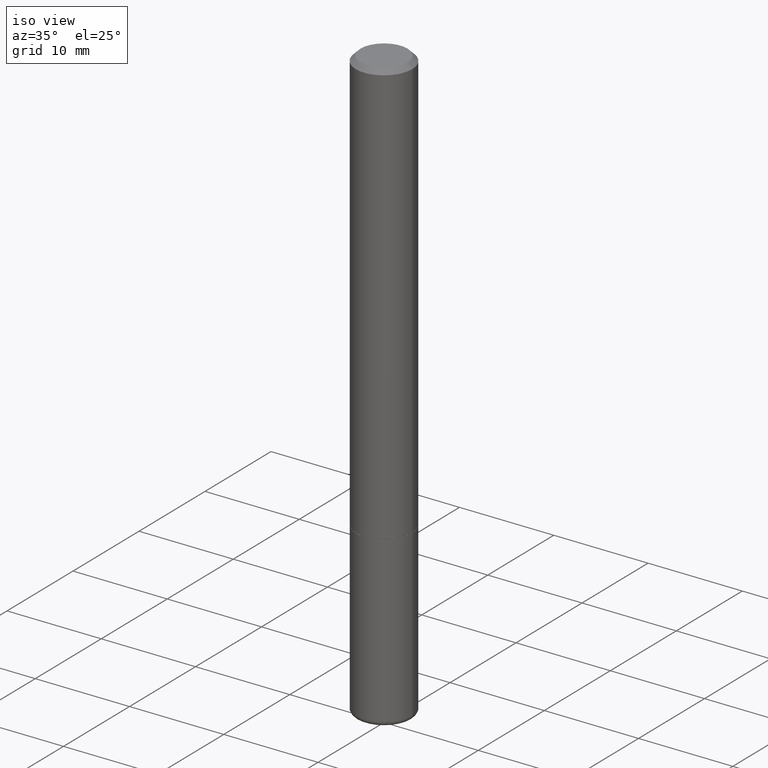
[diagram: clean part render]
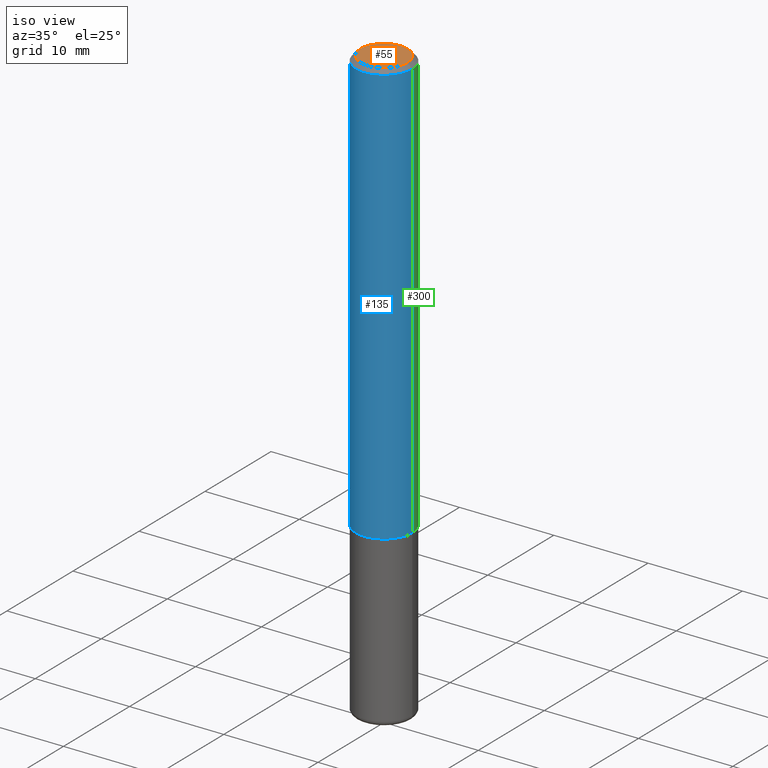
[diagram: same view with three faces highlighted in distinct colors, each labeled with its STEP entity id]
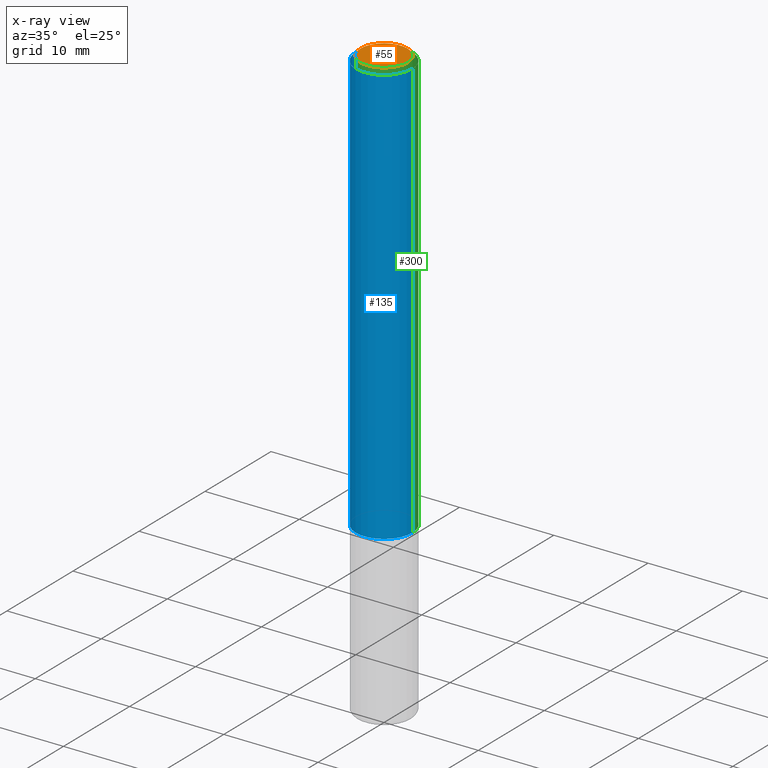
[diagram: x-ray of the same camera — body ghosted, the three highlighted faces saturated]
A machine part, iso view with three faces highlighted in distinct colors.
The next image is the same camera in x-ray (body ghosted, the three faces saturated) — at least one of them is partly hidden behind the body in this view.
Their STEP definitions:

[orange] entity #55 — the highlighted planar face has unit normal (0, -0, -1).
#55 = ADVANCED_FACE ( 'NONE', ( #97 ), #319, .F. ) ;
#62 = DIRECTION ( 'NONE',  ( 1.000000000000000000, -6.982962677686265922E-15, 4.884890577880254879E-29 ) ) ;
#77 = VERTEX_POINT ( 'NONE', #345 ) ;
#97 = FACE_OUTER_BOUND ( 'NONE', #197, .T. ) ;
#114 = ORIENTED_EDGE ( 'NONE', *, *, #281, .T. ) ;
#120 = DIRECTION ( 'NONE',  ( 2.438088387897960049E-29, -3.491481338843145188E-15, -1.000000000000000000 ) ) ;
#124 = AXIS2_PLACEMENT_3D ( 'NONE', #320, #354, #62 ) ;
#130 = ORIENTED_EDGE ( 'NONE', *, *, #142, .T. ) ;
#142 = EDGE_CURVE ( 'NONE', #341, #77, #204, .T. ) ;
#175 = AXIS2_PLACEMENT_3D ( 'NONE', #280, #120, #245 ) ;
#197 = EDGE_LOOP ( 'NONE', ( #130, #114 ) ) ;
#204 = CIRCLE ( 'NONE', #124, 0.09809999999999986786 ) ;
#221 = DIRECTION ( 'NONE',  ( 1.000000000000000000, -6.982962677686265922E-15, 4.884890577880254879E-29 ) ) ;
#245 = DIRECTION ( 'NONE',  ( -1.000000000000000000, 6.982962677686265922E-15, -4.876176775795935793E-29 ) ) ;
#280 = CARTESIAN_POINT ( 'NONE',  ( 6.850286386810217648E-16, 0.09809999999999986786, -2.528755570484034997E-16 ) ) ;
#281 = EDGE_CURVE ( 'NONE', #77, #341, #330, .T. ) ;
#294 = CARTESIAN_POINT ( 'NONE',  ( -0.09809999999999986786, 7.199434520694538083E-16, 1.792775245842123495E-16 ) ) ;
#319 = PLANE ( 'NONE',  #175 ) ;
#320 = CARTESIAN_POINT ( 'NONE',  ( -4.384175940207923203E-45, 6.259441315597878405E-31, 1.792775245842172799E-16 ) ) ;
#330 = CIRCLE ( 'NONE', #342, 0.09809999999999986786 ) ;
#341 = VERTEX_POINT ( 'NONE', #294 ) ;
#342 = AXIS2_PLACEMENT_3D ( 'NONE', #388, #357, #221 ) ;
#345 = CARTESIAN_POINT ( 'NONE',  ( 0.09809999999999986786, -7.765346469475334625E-16, 1.792775245842223582E-16 ) ) ;
#354 = DIRECTION ( 'NONE',  ( -2.445468806185136597E-29, 3.491481338843145583E-15, 1.000000000000000000 ) ) ;
#357 = DIRECTION ( 'NONE',  ( -2.445468806185136597E-29, 3.491481338843145583E-15, 1.000000000000000000 ) ) ;
#388 = CARTESIAN_POINT ( 'NONE',  ( -4.384175940207923203E-45, 6.259441315597878405E-31, 1.792775245842172799E-16 ) ) ;

[blue] entity #135 — the highlighted cylindrical surface (edge-blend (fillet) strip) has radius 2.9997 mm, axis along (-0, 0, 1).
#14 = ORIENTED_EDGE ( 'NONE', *, *, #375, .T. ) ;
#20 = DIRECTION ( 'NONE',  ( -2.445468806185136597E-29, 3.491481338843145583E-15, 1.000000000000000000 ) ) ;
#26 = VECTOR ( 'NONE', #56, 39.37007874015748143 ) ;
#39 = DIRECTION ( 'NONE',  ( 1.000000000000000000, -6.982962677686266711E-15, 4.876176775795936353E-29 ) ) ;
#50 = AXIS2_PLACEMENT_3D ( 'NONE', #312, #230, #39 ) ;
#56 = DIRECTION ( 'NONE',  ( -2.445468806185136877E-29, 3.491481338843145188E-15, 1.000000000000000000 ) ) ;
#57 = EDGE_CURVE ( 'NONE', #63, #160, #378, .T. ) ;
#63 = VERTEX_POINT ( 'NONE', #143 ) ;
#88 = CIRCLE ( 'NONE', #176, 0.1181000000000002187 ) ;
#106 = EDGE_CURVE ( 'NONE', #160, #137, #315, .T. ) ;
#135 = ADVANCED_FACE ( 'NONE', ( #344 ), #407, .T. ) ;
#137 = VERTEX_POINT ( 'NONE', #254 ) ;
#143 = CARTESIAN_POINT ( 'NONE',  ( -0.1181000000000002187, -2.286772271733587183E-15, -1.770600000000000174 ) ) ;
#147 = CARTESIAN_POINT ( 'NONE',  ( 4.890937612370288923E-31, -6.982962677686312563E-17, -0.02000000000000006287 ) ) ;
#160 = VERTEX_POINT ( 'NONE', #273 ) ;
#167 = ORIENTED_EDGE ( 'NONE', *, *, #106, .F. ) ;
#176 = AXIS2_PLACEMENT_3D ( 'NONE', #327, #399, #396 ) ;
#178 = EDGE_LOOP ( 'NONE', ( #349, #14, #374, #167 ) ) ;
#185 = EDGE_CURVE ( 'NONE', #370, #137, #362, .T. ) ;
#196 = CARTESIAN_POINT ( 'NONE',  ( 0.1181000000000001354, -8.246878922347490515E-16, 5.758764772215007447E-30 ) ) ;
#212 = CARTESIAN_POINT ( 'NONE',  ( 0.1181000000000002187, -7.006704750790424403E-15, -1.770600000000000174 ) ) ;
#227 = VECTOR ( 'NONE', #299, 39.37007874015748143 ) ;
#230 = DIRECTION ( 'NONE',  ( -2.445468806185136597E-29, 3.491481338843145583E-15, 1.000000000000000000 ) ) ;
#254 = CARTESIAN_POINT ( 'NONE',  ( 0.1181000000000000383, -8.800544403136812319E-16, -0.02000000000000006287 ) ) ;
#266 = DIRECTION ( 'NONE',  ( 1.000000000000000000, -6.982962677686266711E-15, 0.000000000000000000 ) ) ;
#273 = CARTESIAN_POINT ( 'NONE',  ( -0.1181000000000000383, 7.548582654578852602E-16, -0.02000000000000006287 ) ) ;
#299 = DIRECTION ( 'NONE',  ( -2.445468806185136877E-29, 3.491481338843145188E-15, 1.000000000000000000 ) ) ;
#312 = CARTESIAN_POINT ( 'NONE',  ( 0.000000000000000000, 0.000000000000000000, 0.000000000000000000 ) ) ;
#314 = AXIS2_PLACEMENT_3D ( 'NONE', #147, #20, #266 ) ;
#315 = CIRCLE ( 'NONE', #314, 0.1181000000000000383 ) ;
#327 = CARTESIAN_POINT ( 'NONE',  ( 4.329947068231403160E-29, -6.182016858555674562E-15, -1.770600000000000174 ) ) ;
#344 = FACE_OUTER_BOUND ( 'NONE', #178, .T. ) ;
#349 = ORIENTED_EDGE ( 'NONE', *, *, #57, .F. ) ;
#362 = LINE ( 'NONE', #196, #227 ) ;
#370 = VERTEX_POINT ( 'NONE', #212 ) ;
#374 = ORIENTED_EDGE ( 'NONE', *, *, #185, .T. ) ;
#375 = EDGE_CURVE ( 'NONE', #63, #370, #88, .T. ) ;
#377 = CARTESIAN_POINT ( 'NONE',  ( -0.1181000000000001354, 8.391509709326792818E-16, -5.809262341591050090E-30 ) ) ;
#378 = LINE ( 'NONE', #377, #26 ) ;
#396 = DIRECTION ( 'NONE',  ( 1.000000000000000000, -6.982962677686267499E-15, 0.000000000000000000 ) ) ;
#399 = DIRECTION ( 'NONE',  ( -2.445468806185136597E-29, 3.491481338843145583E-15, 1.000000000000000000 ) ) ;
#407 = CYLINDRICAL_SURFACE ( 'NONE', #50, 0.1181000000000001354 ) ;

[green] entity #300 — the highlighted cylindrical surface (edge-blend (fillet) strip) has radius 2.9997 mm, axis along (-0, 0, 1).
#4 = CIRCLE ( 'NONE', #372, 0.1181000000000000383 ) ;
#8 = DIRECTION ( 'NONE',  ( -2.445468806185136597E-29, 3.491481338843145583E-15, 1.000000000000000000 ) ) ;
#26 = VECTOR ( 'NONE', #56, 39.37007874015748143 ) ;
#48 = ORIENTED_EDGE ( 'NONE', *, *, #185, .F. ) ;
#56 = DIRECTION ( 'NONE',  ( -2.445468806185136877E-29, 3.491481338843145188E-15, 1.000000000000000000 ) ) ;
#57 = EDGE_CURVE ( 'NONE', #63, #160, #378, .T. ) ;
#63 = VERTEX_POINT ( 'NONE', #143 ) ;
#64 = DIRECTION ( 'NONE',  ( -2.445468806185136597E-29, 3.491481338843145583E-15, 1.000000000000000000 ) ) ;
#66 = CARTESIAN_POINT ( 'NONE',  ( 0.000000000000000000, 0.000000000000000000, 0.000000000000000000 ) ) ;
#137 = VERTEX_POINT ( 'NONE', #254 ) ;
#143 = CARTESIAN_POINT ( 'NONE',  ( -0.1181000000000002187, -2.286772271733587183E-15, -1.770600000000000174 ) ) ;
#156 = EDGE_CURVE ( 'NONE', #137, #160, #4, .T. ) ;
#160 = VERTEX_POINT ( 'NONE', #273 ) ;
#183 = DIRECTION ( 'NONE',  ( 1.000000000000000000, -6.982962677686266711E-15, 4.876176775795936353E-29 ) ) ;
#185 = EDGE_CURVE ( 'NONE', #370, #137, #362, .T. ) ;
#189 = EDGE_LOOP ( 'NONE', ( #301, #222, #200, #48 ) ) ;
#196 = CARTESIAN_POINT ( 'NONE',  ( 0.1181000000000001354, -8.246878922347490515E-16, 5.758764772215007447E-30 ) ) ;
#200 = ORIENTED_EDGE ( 'NONE', *, *, #156, .F. ) ;
#205 = AXIS2_PLACEMENT_3D ( 'NONE', #66, #64, #183 ) ;
#212 = CARTESIAN_POINT ( 'NONE',  ( 0.1181000000000002187, -7.006704750790424403E-15, -1.770600000000000174 ) ) ;
#216 = CARTESIAN_POINT ( 'NONE',  ( 4.329947068231403160E-29, -6.182016858555674562E-15, -1.770600000000000174 ) ) ;
#222 = ORIENTED_EDGE ( 'NONE', *, *, #57, .T. ) ;
#227 = VECTOR ( 'NONE', #299, 39.37007874015748143 ) ;
#249 = FACE_OUTER_BOUND ( 'NONE', #189, .T. ) ;
#254 = CARTESIAN_POINT ( 'NONE',  ( 0.1181000000000000383, -8.800544403136812319E-16, -0.02000000000000006287 ) ) ;
#257 = CIRCLE ( 'NONE', #359, 0.1181000000000002187 ) ;
#273 = CARTESIAN_POINT ( 'NONE',  ( -0.1181000000000000383, 7.548582654578852602E-16, -0.02000000000000006287 ) ) ;
#274 = DIRECTION ( 'NONE',  ( 1.000000000000000000, -6.982962677686266711E-15, 0.000000000000000000 ) ) ;
#292 = EDGE_CURVE ( 'NONE', #370, #63, #257, .T. ) ;
#299 = DIRECTION ( 'NONE',  ( -2.445468806185136877E-29, 3.491481338843145188E-15, 1.000000000000000000 ) ) ;
#300 = ADVANCED_FACE ( 'NONE', ( #249 ), #383, .T. ) ;
#301 = ORIENTED_EDGE ( 'NONE', *, *, #292, .T. ) ;
#355 = DIRECTION ( 'NONE',  ( 1.000000000000000000, -6.982962677686267499E-15, 0.000000000000000000 ) ) ;
#359 = AXIS2_PLACEMENT_3D ( 'NONE', #216, #8, #355 ) ;
#362 = LINE ( 'NONE', #196, #227 ) ;
#370 = VERTEX_POINT ( 'NONE', #212 ) ;
#372 = AXIS2_PLACEMENT_3D ( 'NONE', #382, #411, #274 ) ;
#377 = CARTESIAN_POINT ( 'NONE',  ( -0.1181000000000001354, 8.391509709326792818E-16, -5.809262341591050090E-30 ) ) ;
#378 = LINE ( 'NONE', #377, #26 ) ;
#382 = CARTESIAN_POINT ( 'NONE',  ( 4.890937612370288923E-31, -6.982962677686312563E-17, -0.02000000000000006287 ) ) ;
#383 = CYLINDRICAL_SURFACE ( 'NONE', #205, 0.1181000000000001354 ) ;
#411 = DIRECTION ( 'NONE',  ( -2.445468806185136597E-29, 3.491481338843145583E-15, 1.000000000000000000 ) ) ;